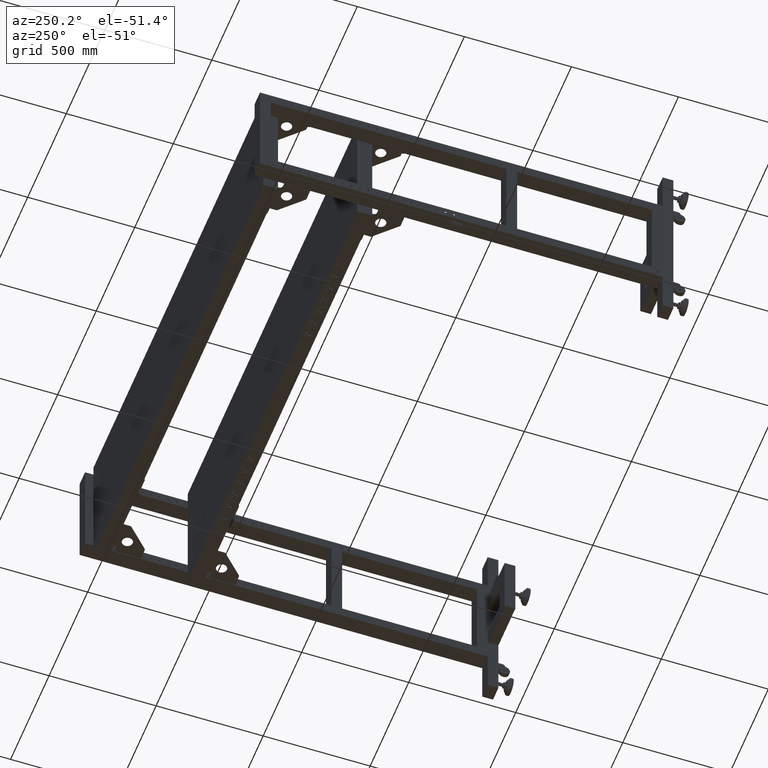
[diagram: clean part render]
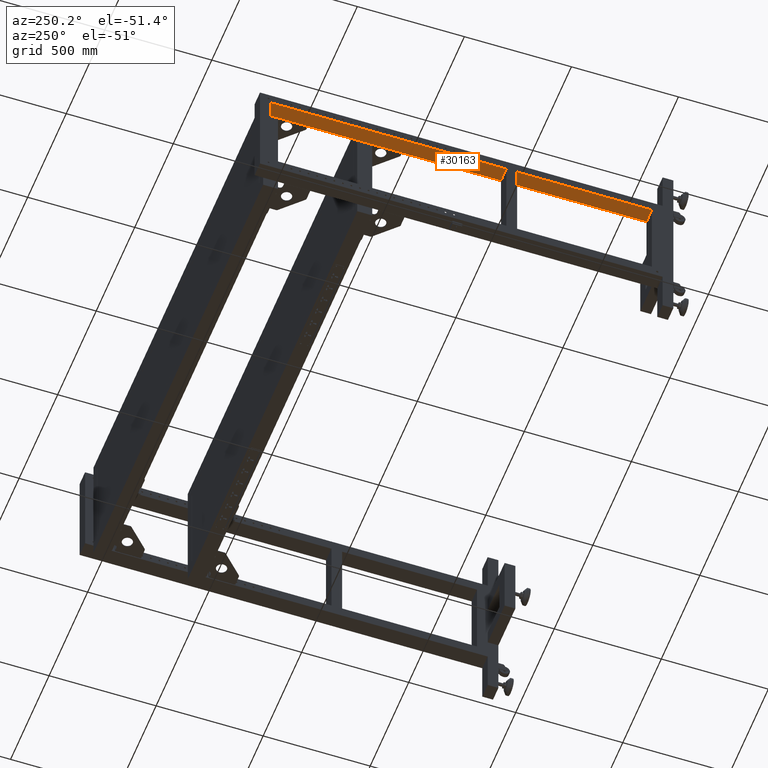
[diagram: same view with one face highlighted and labeled with its STEP entity id]
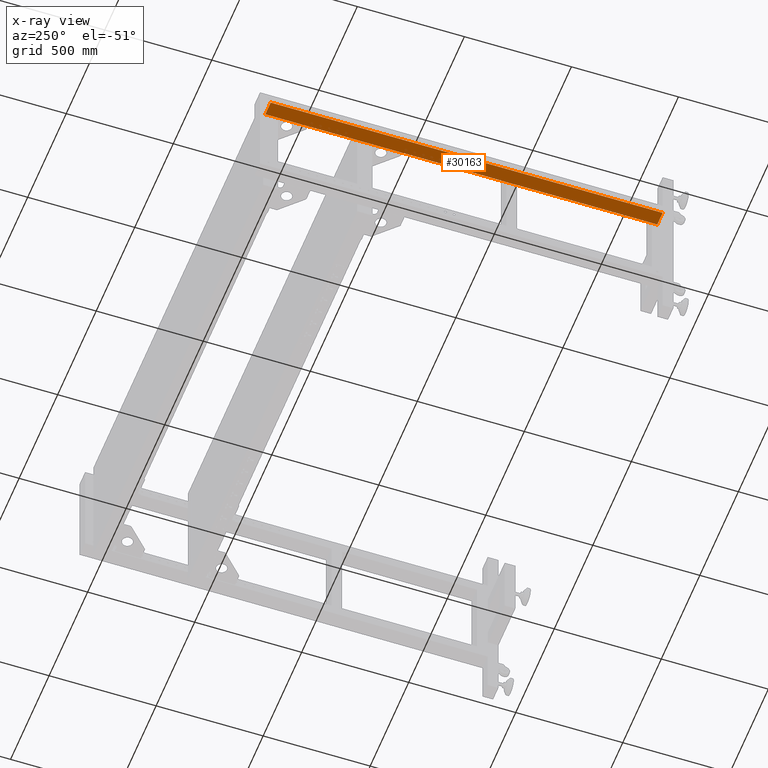
[diagram: x-ray of the same camera — body ghosted, the highlighted face saturated]
A machine part, auxiliary view. The second image highlights one B-rep face of the part: STEP entity #30163.
The next image is the same camera in x-ray: the body ghosted, the highlighted face saturated — about 0% of this face is hidden behind the body in this view.
In plain terms, the highlighted planar face has unit normal (-0, 0, 1).
Its self-contained STEP definition (entity closure, byte-faithful):
#367 = VECTOR ( 'NONE', #44334, 1000.000000000000000 ) ;
#833 = DIRECTION ( 'NONE',  ( -1.000000000000000078E-15, -1.000000000000000000, -0.000000000000000000 ) ) ;
#1033 = VERTEX_POINT ( 'NONE', #7421 ) ;
#3821 = EDGE_CURVE ( 'NONE', #78088, #29975, #77024, .T. ) ;
#4933 = EDGE_LOOP ( 'NONE', ( #55088, #78773, #8222, #36729, #62692, #47648, #75701, #12467 ) ) ;
#7421 = CARTESIAN_POINT ( 'NONE',  ( -1338.172487437185055, -844.5589195979888473, 199.9999999999999716 ) ) ;
#8222 = ORIENTED_EDGE ( 'NONE', *, *, #51216, .T. ) ;
#8816 = LINE ( 'NONE', #76769, #72113 ) ;
#10028 = DIRECTION ( 'NONE',  ( -1.000000000000000000, 0.000000000000000000, 0.000000000000000000 ) ) ;
#12467 = ORIENTED_EDGE ( 'NONE', *, *, #43063, .F. ) ;
#13402 = DIRECTION ( 'NONE',  ( -1.000000000000000000, 1.585669478376821542E-15, -0.000000000000000000 ) ) ;
#13643 = DIRECTION ( 'NONE',  ( 1.000000000000000000, 0.000000000000000000, 0.000000000000000000 ) ) ;
#13919 = LINE ( 'NONE', #64259, #57010 ) ;
#16558 = CARTESIAN_POINT ( 'NONE',  ( -1338.172487437185964, 986.4410804020109254, 199.9999999999999716 ) ) ;
#16899 = LINE ( 'NONE', #29157, #23244 ) ;
#16932 = VECTOR ( 'NONE', #67996, 1000.000000000000000 ) ;
#19286 = CARTESIAN_POINT ( 'NONE',  ( -1268.172487437185055, -844.5589195979888473, 199.9999999999999716 ) ) ;
#19608 = VERTEX_POINT ( 'NONE', #58040 ) ;
#19684 = DIRECTION ( 'NONE',  ( 0.000000000000000000, 1.000000000000000000, 0.000000000000000000 ) ) ;
#20168 = PLANE ( 'NONE',  #66449 ) ;
#21615 = EDGE_CURVE ( 'NONE', #1033, #19608, #16899, .T. ) ;
#23050 = CARTESIAN_POINT ( 'NONE',  ( -1268.172487437185964, 926.9410804020111527, 199.9999999999999716 ) ) ;
#23244 = VECTOR ( 'NONE', #55650, 1000.000000000000000 ) ;
#24540 = EDGE_CURVE ( 'NONE', #58269, #63844, #55223, .T. ) ;
#25736 = VECTOR ( 'NONE', #19684, 1000.000000000000000 ) ;
#28466 = VECTOR ( 'NONE', #13402, 1000.000000000000000 ) ;
#29157 = CARTESIAN_POINT ( 'NONE',  ( -1338.172487437185055, -844.5589195979888473, 199.9999999999999716 ) ) ;
#29975 = VERTEX_POINT ( 'NONE', #73450 ) ;
#30163 = ADVANCED_FACE ( 'NONE', ( #57445 ), #20168, .F. ) ;
#35185 = CARTESIAN_POINT ( 'NONE',  ( -1268.172487437185055, 919.4410804020135402, 199.9999999999999716 ) ) ;
#36729 = ORIENTED_EDGE ( 'NONE', *, *, #3821, .T. ) ;
#37359 = CARTESIAN_POINT ( 'NONE',  ( -1268.156444386293742, 926.9410804020111527, 199.9999999999999716 ) ) ;
#39436 = EDGE_CURVE ( 'NONE', #58269, #43713, #8816, .T. ) ;
#43063 = EDGE_CURVE ( 'NONE', #43713, #1033, #13919, .T. ) ;
#43713 = VERTEX_POINT ( 'NONE', #16558 ) ;
#43742 = CARTESIAN_POINT ( 'NONE',  ( -1268.172487437185964, 996.9410804020109254, 199.9999999999999716 ) ) ;
#44334 = DIRECTION ( 'NONE',  ( 1.000000000000000000, -4.448884876874220047E-16, 0.000000000000000000 ) ) ;
#45300 = EDGE_CURVE ( 'NONE', #19608, #60920, #63483, .T. ) ;
#47648 = ORIENTED_EDGE ( 'NONE', *, *, #45300, .F. ) ;
#49084 = DIRECTION ( 'NONE',  ( -1.000000000000000078E-15, -1.000000000000000000, 0.000000000000000000 ) ) ;
#50111 = CARTESIAN_POINT ( 'NONE',  ( -1338.172487437185055, 986.4410804020136538, 199.9999999999999716 ) ) ;
#50462 = LINE ( 'NONE', #69697, #367 ) ;
#51216 = EDGE_CURVE ( 'NONE', #63844, #78088, #50462, .T. ) ;
#52069 = CARTESIAN_POINT ( 'NONE',  ( -1268.156444386293742, 986.4410804020136538, 199.9999999999999716 ) ) ;
#55088 = ORIENTED_EDGE ( 'NONE', *, *, #39436, .F. ) ;
#55223 = LINE ( 'NONE', #43742, #73257 ) ;
#55650 = DIRECTION ( 'NONE',  ( 1.000000000000000000, 0.000000000000000000, 0.000000000000000000 ) ) ;
#57010 = VECTOR ( 'NONE', #833, 1000.000000000000000 ) ;
#57445 = FACE_OUTER_BOUND ( 'NONE', #4933, .T. ) ;
#58040 = CARTESIAN_POINT ( 'NONE',  ( -1268.172487437185055, -844.5589195979888473, 199.9999999999999716 ) ) ;
#58269 = VERTEX_POINT ( 'NONE', #61353 ) ;
#60920 = VERTEX_POINT ( 'NONE', #35185 ) ;
#61353 = CARTESIAN_POINT ( 'NONE',  ( -1268.172487437185964, 986.4410804020135402, 199.9999999999999716 ) ) ;
#62692 = ORIENTED_EDGE ( 'NONE', *, *, #64424, .T. ) ;
#63483 = LINE ( 'NONE', #19286, #25736 ) ;
#63844 = VERTEX_POINT ( 'NONE', #23050 ) ;
#64142 = CARTESIAN_POINT ( 'NONE',  ( -1338.172487437185055, 919.4410804020136538, 199.9999999999999716 ) ) ;
#64259 = CARTESIAN_POINT ( 'NONE',  ( -1338.172487437185055, 986.4410804020136538, 199.9999999999999716 ) ) ;
#64424 = EDGE_CURVE ( 'NONE', #29975, #60920, #70679, .T. ) ;
#66449 = AXIS2_PLACEMENT_3D ( 'NONE', #50111, #69737, #13643 ) ;
#67996 = DIRECTION ( 'NONE',  ( -1.000000000000000078E-15, -1.000000000000000000, -0.000000000000000000 ) ) ;
#69697 = CARTESIAN_POINT ( 'NONE',  ( -1268.172487437185964, 926.9410804020111527, 199.9999999999999716 ) ) ;
#69737 = DIRECTION ( 'NONE',  ( -0.000000000000000000, 0.000000000000000000, 1.000000000000000000 ) ) ;
#70679 = LINE ( 'NONE', #64142, #28466 ) ;
#72113 = VECTOR ( 'NONE', #10028, 1000.000000000000000 ) ;
#73257 = VECTOR ( 'NONE', #49084, 1000.000000000000000 ) ;
#73450 = CARTESIAN_POINT ( 'NONE',  ( -1268.156444386293742, 919.4410804020135402, 199.9999999999999716 ) ) ;
#75701 = ORIENTED_EDGE ( 'NONE', *, *, #21615, .F. ) ;
#76769 = CARTESIAN_POINT ( 'NONE',  ( -1338.172487437185964, 986.4410804020109254, 199.9999999999999716 ) ) ;
#77024 = LINE ( 'NONE', #52069, #16932 ) ;
#78088 = VERTEX_POINT ( 'NONE', #37359 ) ;
#78773 = ORIENTED_EDGE ( 'NONE', *, *, #24540, .T. ) ;